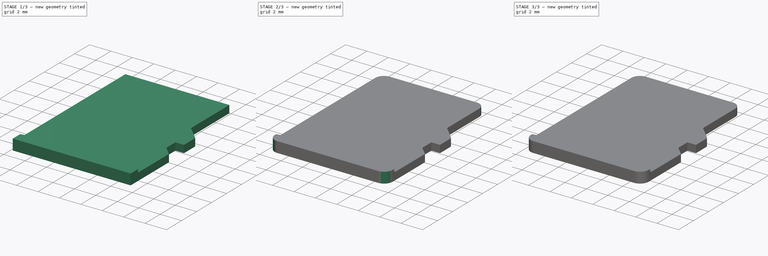
[diagram: build sequence overview — one tinted view per stage of 3, left to right]
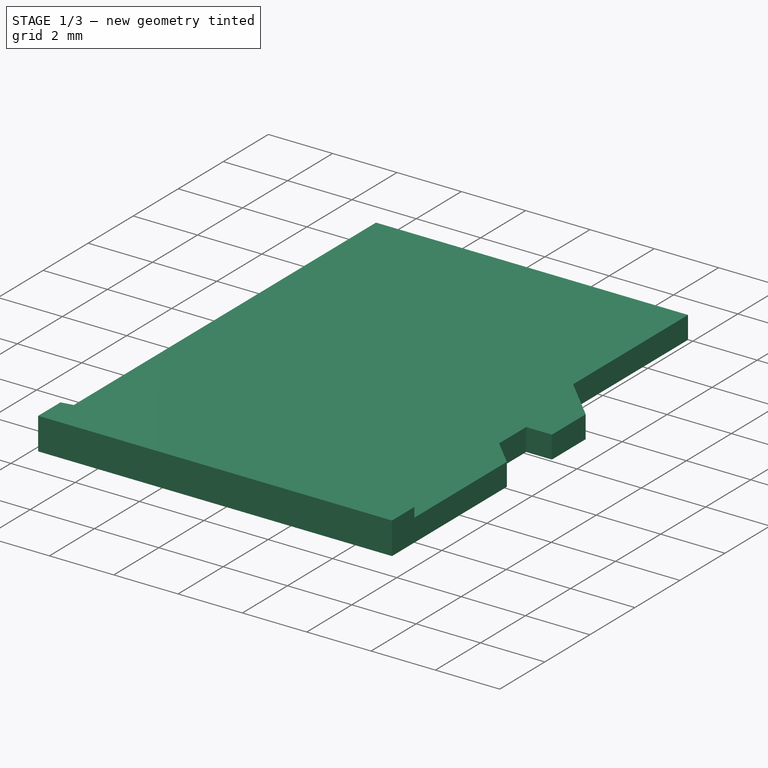
[diagram: stage 1 of 3 — iso view after this stage's code; geometry added in this stage tinted green]
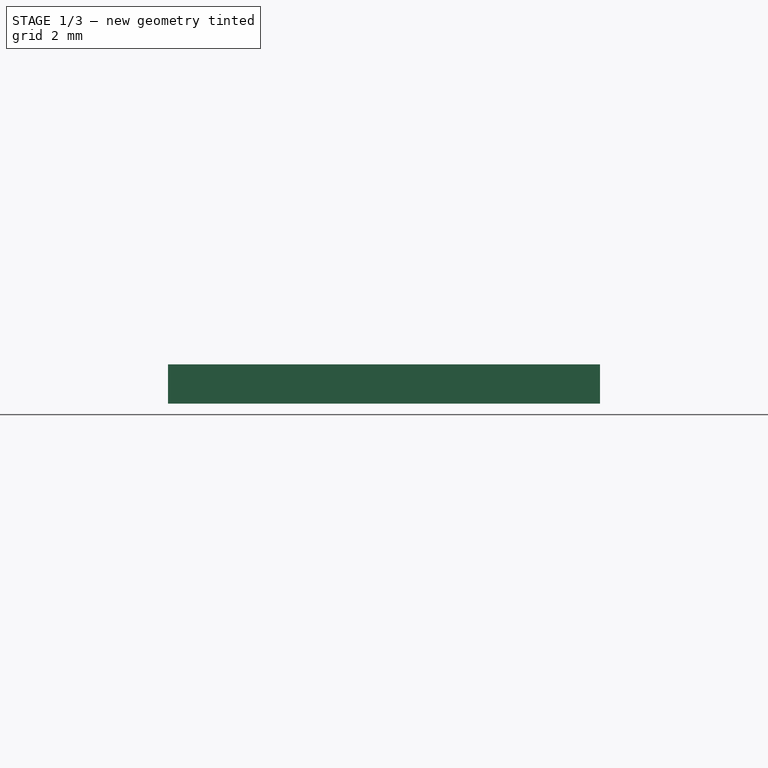
[diagram: stage 1 of 3 — front view after this stage's code; geometry added in this stage tinted green]
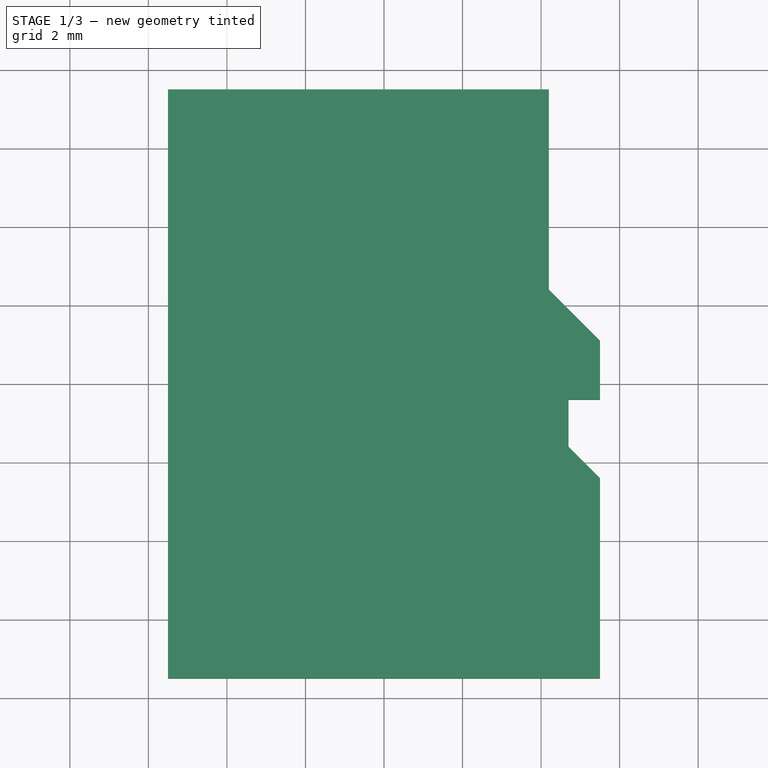
[diagram: stage 1 of 3 — top view after this stage's code; geometry added in this stage tinted green]
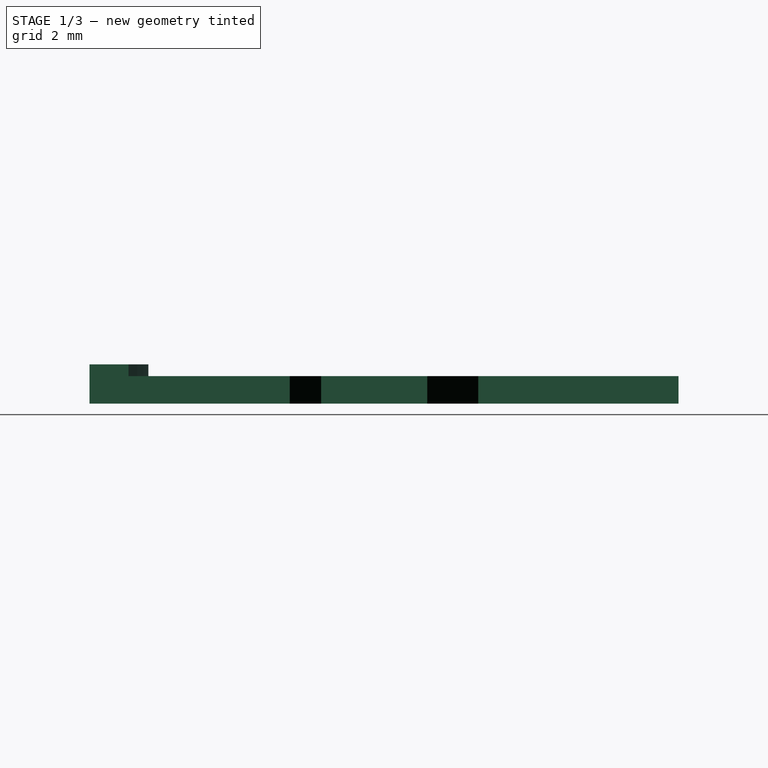
[diagram: stage 1 of 3 — right view after this stage's code; geometry added in this stage tinted green]
FCSTD DOCUMENT  (FreeCAD 0.17R12607 (Git))
Label: MR07C-06200 with SDCard
License: All rights reserved
LicenseURL: http://en.wikipedia.org/wiki/All_rights_reserved
objects: Sketcher::SketchObject×4, PartDesign::Fillet×3, PartDesign::Pad×2, PartDesign::Pocket×2, PartDesign::Body×1
note: 16 computed .brp shape members not serialized (recipe doc carries the construction recipe); baked Part::Feature solids carry a one-line shape summary decoded from their .brp

FEATURE [Sketcher::SketchObject] Sketch
  MapMode = 5
  Support = -> [XY_Plane]
  sketch-geometry (12):
    g0: LineSegment StartX=4.2 StartY=7.5 StartZ=0 EndX=4.2 EndY=2.4 EndZ=0
    g1: LineSegment StartX=4.2 StartY=2.4 StartZ=0 EndX=5.5 EndY=1.1 EndZ=0
    g2: LineSegment StartX=5.5 StartY=1.1 StartZ=0 EndX=5.5 EndY=-0.4 EndZ=0
    g3: LineSegment StartX=5.5 StartY=-0.4 StartZ=0 EndX=4.7 EndY=-0.4 EndZ=0
    g4: LineSegment StartX=4.7 StartY=-0.4 StartZ=0 EndX=4.7 EndY=-1.6 EndZ=0
    g5: LineSegment StartX=4.7 StartY=-1.6 StartZ=0 EndX=5.5 EndY=-2.4 EndZ=0
    g6: LineSegment StartX=4.2 StartY=7.5 StartZ=0 EndX=-5.5 EndY=7.5 EndZ=0
    g7: GeomPoint X=0 Y=-36 Z=0
    g8: ArcOfCircle CenterX=0 CenterY=-36 CenterZ=0 NormalX=0 NormalY=0 NormalZ=1 AngleXU=0 Radius=30 StartAngle=1.38642 EndAngle=1.75517
    g9: GeomPoint X=0 Y=-6 Z=0
    g10: LineSegment StartX=-5.5 StartY=-6.50848 StartZ=0 EndX=-5.5 EndY=7.5 EndZ=0
    g11: LineSegment StartX=5.5 StartY=-6.50848 StartZ=0 EndX=5.5 EndY=-2.4 EndZ=0
  constraints (30):
    c: Vertical(g0)
    c: Coincident(g0,g1)
    c: Coincident(g1,g2)
    c: Vertical(g2)
    c: Coincident(g2,g3)
    c: Coincident(g3,g4)
    c: Vertical(g4)
    c: Coincident(g4,g5)
    c: Horizontal(g6)
    c: DistanceX(g6,g6) = 9.7
    c: Coincident(g0,g6)
    c: Distance(g1,g6) = 6.4
    c: Horizontal(g3)
    c: Angle(g1) = -0.785398
    c: Angle(g5) = -0.785398
    c: Distance(g4,g3) = 1.2
    c: DistanceX(g3,g3) = 0.8
    c: Distance(g2,g6) = 7.9
    c: PointOnObject(g7,g-2)
    c: DistanceY(g-1,g7) = -36
    c: Coincident(g8,g7)
    c: PointOnObject(g9,g-2)
    c: PointOnObject(g9,g8)
    c: DistanceY(g-1,g9) = -6
    c: Coincident(g10,g8)
    c: Coincident(g10,g6)
    c: Vertical(g10)
    c: Coincident(g11,g8)
    c: Coincident(g11,g5)
    c: Vertical(g11)
FEATURE [PartDesign::Pad] Pad
  Length = 0.7
  Length2 = 100
  Profile = -> Sketch
  Type = 0
FEATURE [Sketcher::SketchObject] Sketch001
  ExternalGeometry = -> [Pad]
  MapMode = 5
  Placement = pos=(0,0,0) rot=(1,0,0;3.14159rad)
  Support = -> [Pad]
  sketch-geometry (4):
    g0: ArcOfCircle CenterX=0 CenterY=36 CenterZ=0 NormalX=0 NormalY=0 NormalZ=1 AngleXU=0 Radius=30 StartAngle=4.52801 EndAngle=4.89677
    g1: LineSegment StartX=-5.5 StartY=6.50848 StartZ=0 EndX=-5.5 EndY=7.5 EndZ=0
    g2: LineSegment StartX=-5.5 StartY=7.5 StartZ=0 EndX=5.5 EndY=7.5 EndZ=0
    g3: LineSegment StartX=5.5 StartY=7.5 StartZ=0 EndX=5.5 EndY=6.50848 EndZ=0
  constraints (11):
    c: Coincident(g0,g-3)
    c: Coincident(g0,g-3)
    c: Coincident(g0,g-3)
    c: Coincident(g1,g0)
    c: Vertical(g1)
    c: Coincident(g2,g1)
    c: Horizontal(g2)
    c: Coincident(g3,g2)
    c: Coincident(g3,g0)
    c: Vertical(g3)
    c: DistanceY(g-1,g2) = 7.5
FEATURE [PartDesign::Pad] Pad001
  BaseFeature = -> Pad
  Length = 1
  Length2 = 100
  Profile = -> Sketch001
  Reversed = true
  Type = 0
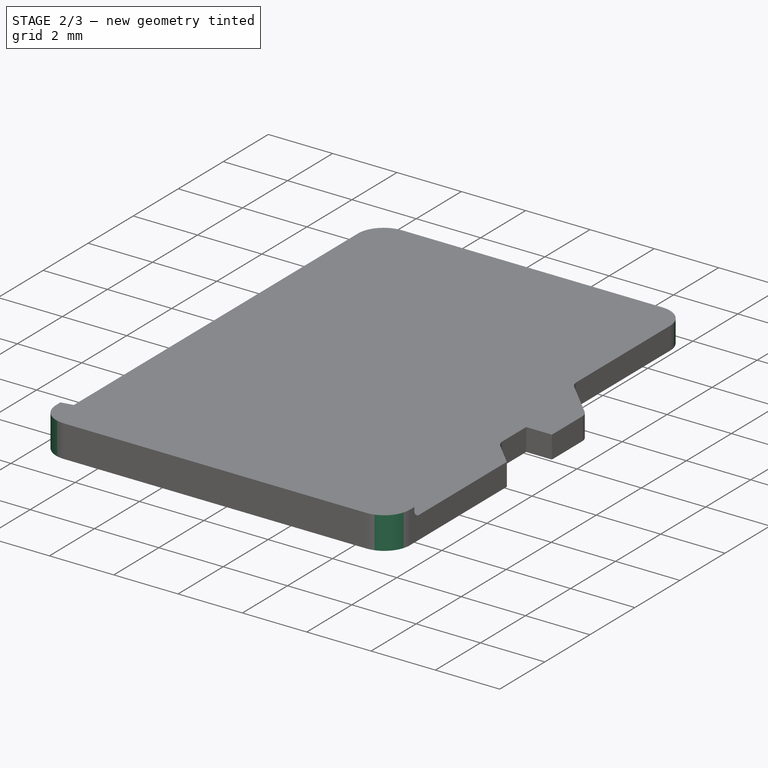
[diagram: stage 2 of 3 — iso view after this stage's code; geometry added in this stage tinted green]
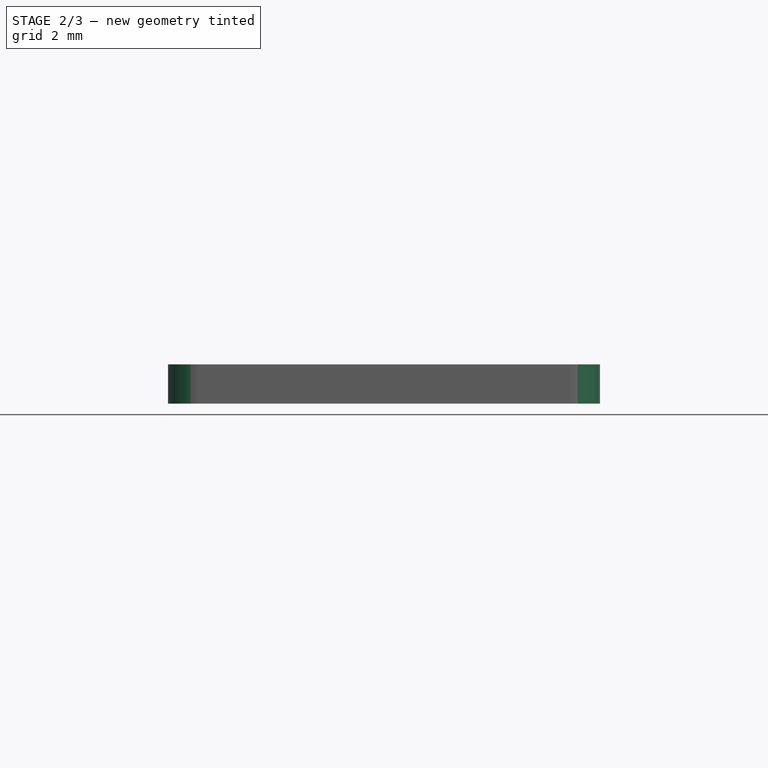
[diagram: stage 2 of 3 — front view after this stage's code; geometry added in this stage tinted green]
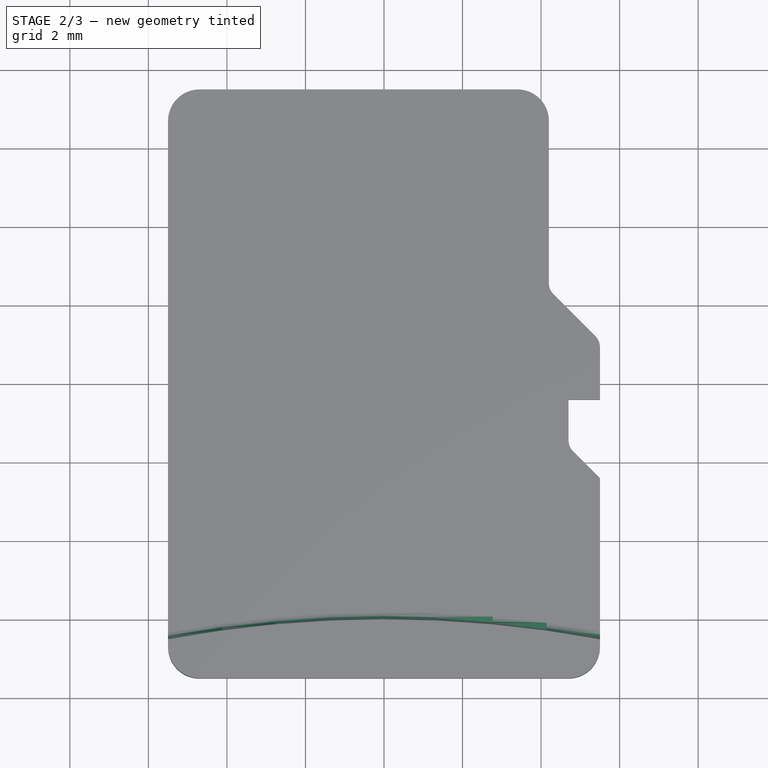
[diagram: stage 2 of 3 — top view after this stage's code; geometry added in this stage tinted green]
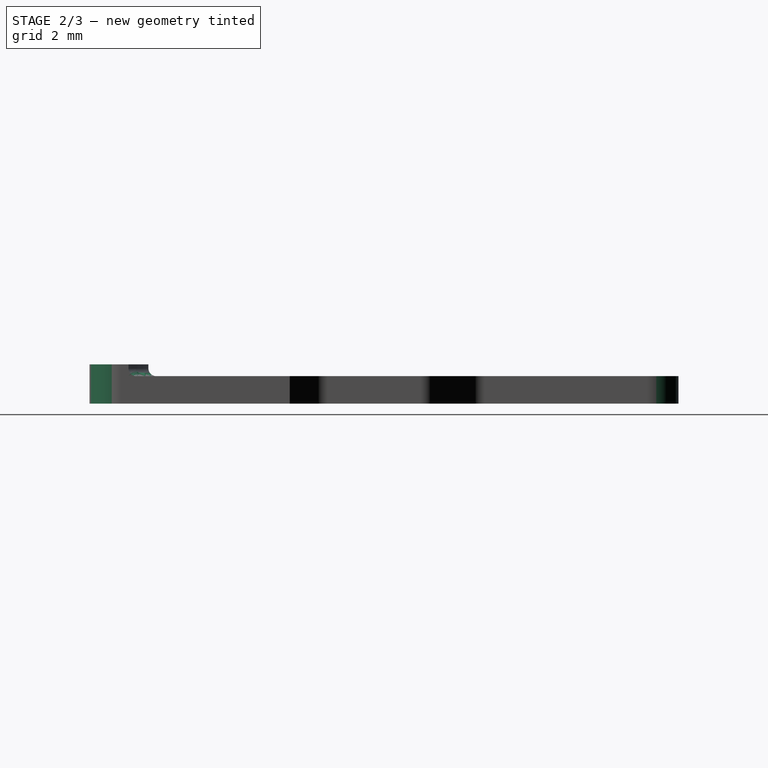
[diagram: stage 2 of 3 — right view after this stage's code; geometry added in this stage tinted green]
FEATURE [PartDesign::Fillet] Fillet
  Base = -> Pad001 [Edge18,Edge35]
  BaseFeature = -> Pad001
  Radius = 0.2
FEATURE [PartDesign::Fillet] Fillet001
  Base = -> Fillet [Edge44,Edge18,Edge22,Edge3]
  BaseFeature = -> Fillet
  Radius = 0.8
FEATURE [PartDesign::Fillet] Fillet002
  Base = -> Fillet001 [Edge42,Edge44,Edge41]
  BaseFeature = -> Fillet001
  Radius = 0.4
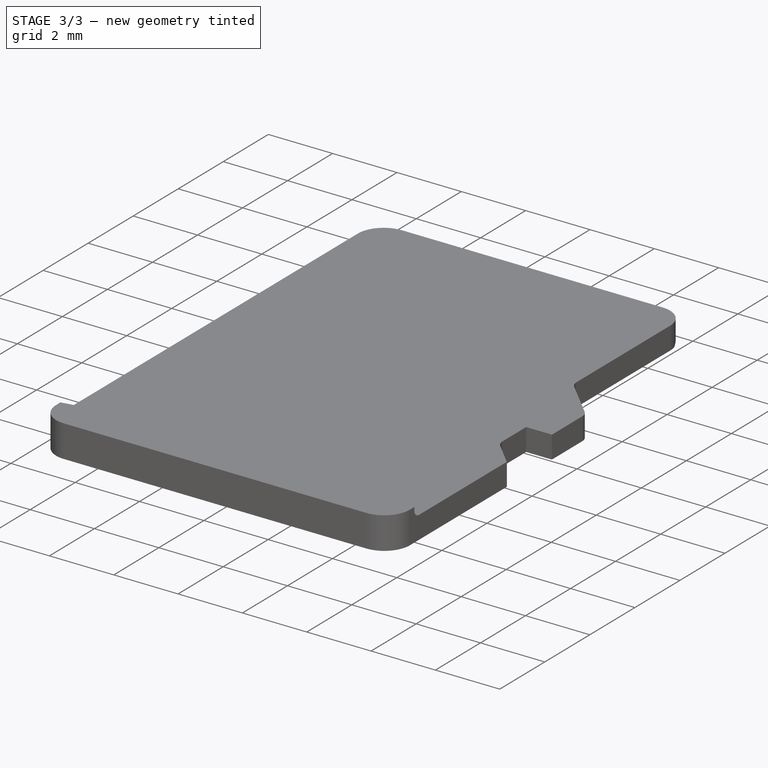
[diagram: stage 3 of 3 — iso view after this stage's code; geometry added in this stage tinted green]
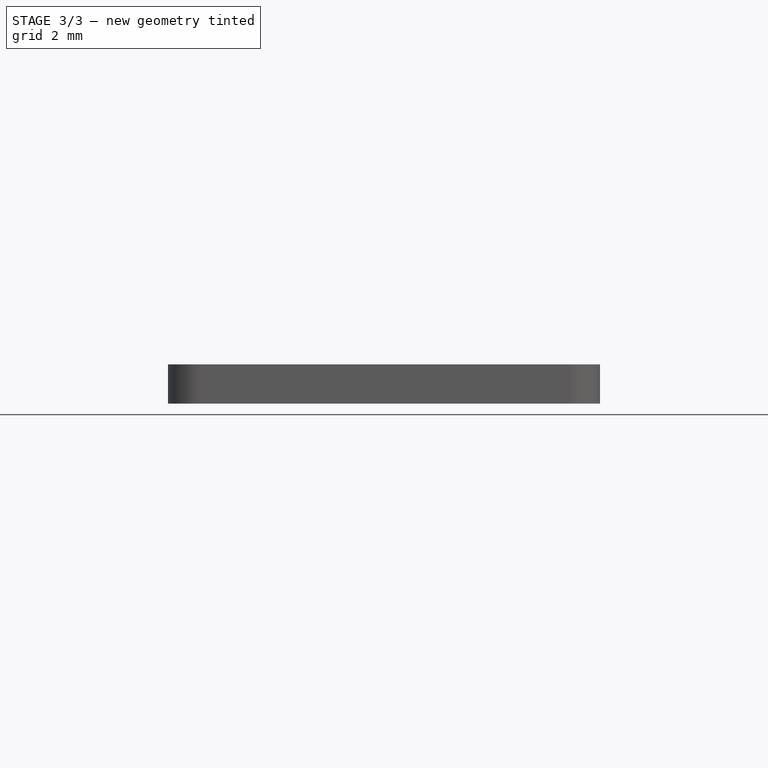
[diagram: stage 3 of 3 — front view after this stage's code; geometry added in this stage tinted green]
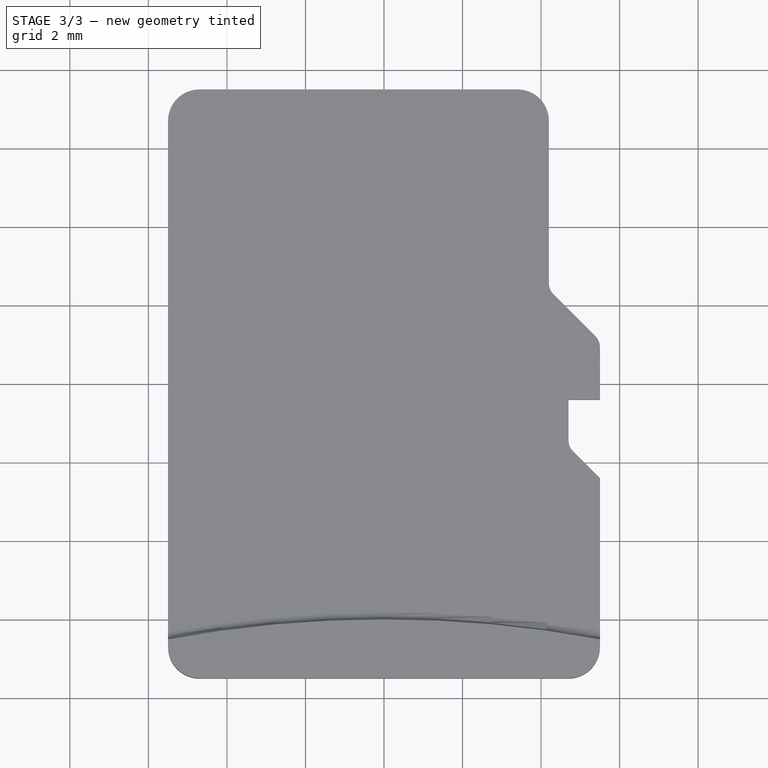
[diagram: stage 3 of 3 — top view after this stage's code; geometry added in this stage tinted green]
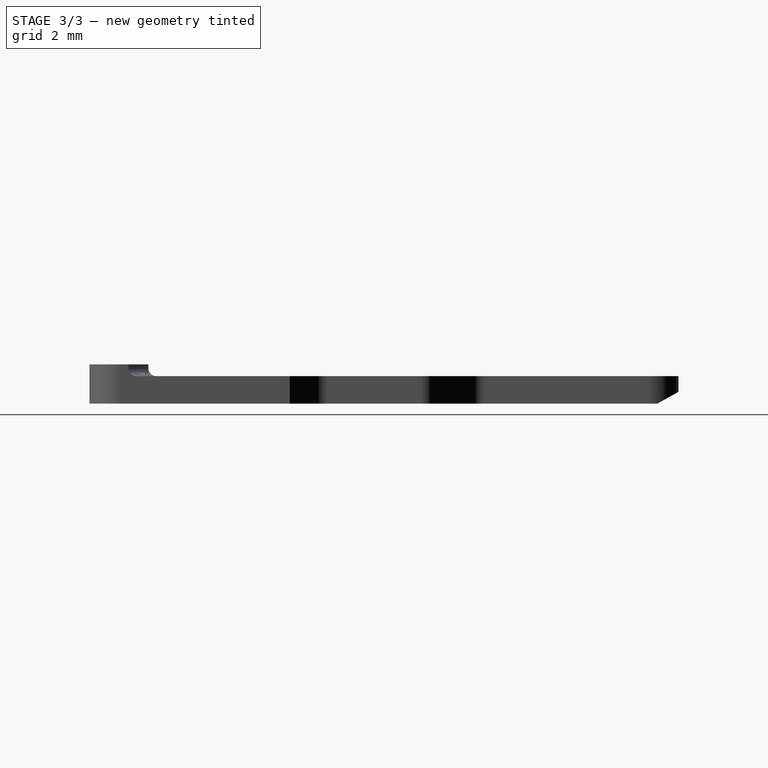
[diagram: stage 3 of 3 — right view after this stage's code; geometry added in this stage tinted green]
FEATURE [Sketcher::SketchObject] Sketch002
  ExternalGeometry = -> [Fillet002]
  MapMode = 5
  Placement = pos=(-5.5,0,0) rot=(0.57735,-0.57735,-0.57735;2.0944rad)
  Support = -> [Fillet002]
  sketch-geometry (3):
    g0: LineSegment StartX=-7.5 StartY=0 StartZ=0 EndX=-6.96 EndY=0 EndZ=0
    g1: LineSegment StartX=-6.96 StartY=0 StartZ=0 EndX=-7.5 EndY=0.3 EndZ=0
    g2: LineSegment StartX=-7.5 StartY=0.3 StartZ=0 EndX=-7.5 EndY=0 EndZ=0
  constraints (8):
    c: Coincident(g-3,g0)
    c: PointOnObject(g0,g-1)
    c: Coincident(g0,g1)
    c: PointOnObject(g1,g-3)
    c: Coincident(g1,g2)
    c: Coincident(g2,g0)
    c: DistanceX(g0,g0) = 0.54
    c: DistanceY(g2,g2) = 0.3
FEATURE [PartDesign::Pocket] Pocket
  BaseFeature = -> Fillet002
  Length = 11
  Profile = -> Sketch002
  Type = 0
FEATURE [Sketcher::SketchObject] Sketch003
  MapMode = 5
  Placement = pos=(0,0,0) rot=(1,0,0;3.14159rad)
  Support = -> [Pad001]
  sketch-geometry (4):
    g0: LineSegment StartX=3.48293 StartY=-5.55274 StartZ=0 EndX=2.63293 EndY=-5.55274 EndZ=0
    g1: LineSegment StartX=2.63293 StartY=-5.55274 StartZ=0 EndX=2.63293 EndY=-2.65274 EndZ=0
    g2: LineSegment StartX=2.63293 StartY=-2.65274 StartZ=0 EndX=3.48293 EndY=-2.65274 EndZ=0
    g3: LineSegment StartX=3.48293 StartY=-2.65274 StartZ=0 EndX=3.48293 EndY=-5.55274 EndZ=0
  constraints (12):
    c: Coincident(g0,g1)
    c: Coincident(g1,g2)
    c: Coincident(g2,g3)
    c: Coincident(g3,g0)
    c: Horizontal(g0)
    c: Horizontal(g2)
    c: Vertical(g1)
    c: Vertical(g3)
    c: DistanceX(g0,g0) = 0.85
    c: DistanceY(g3,g3) = 2.9
    c: DistanceX(g0) = 3.48293
    c: DistanceY(g0) = -5.55274
FEATURE [PartDesign::Pocket] Pocket001
  BaseFeature = -> Pocket
  Length = 0.2
  Profile = -> Sketch003
  Type = 0
FEATURE [PartDesign::Body] Body
  Group = -> [Sketch,Pad,Sketch001,Pad001,Fillet,Fillet001,Fillet002,Sketch002,Pocket,Sketch003,Pocket001]
  Origin = -> Origin
  Tip = -> Pocket001
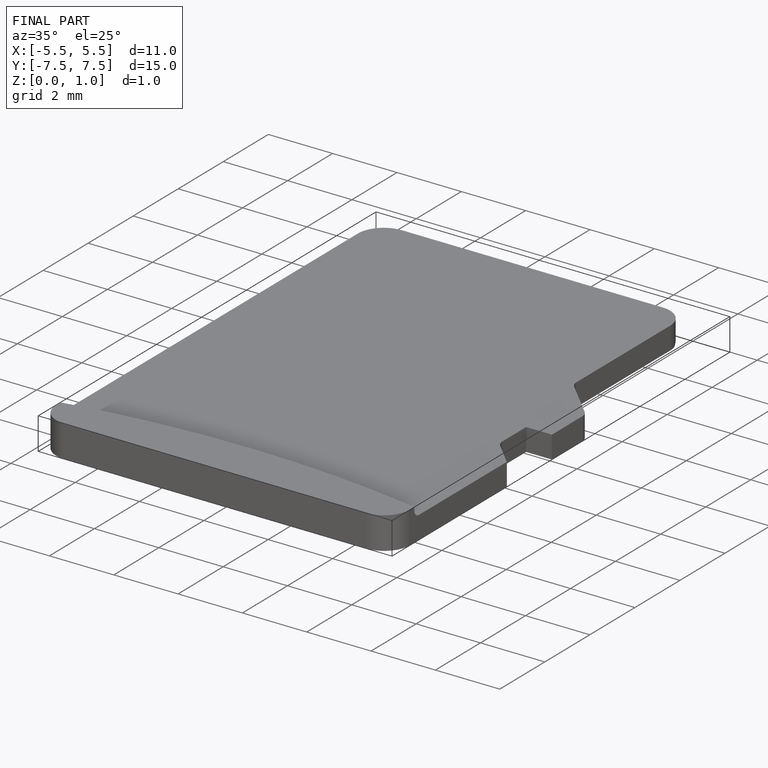
[diagram: finished part — iso view with bounding-box wireframe]
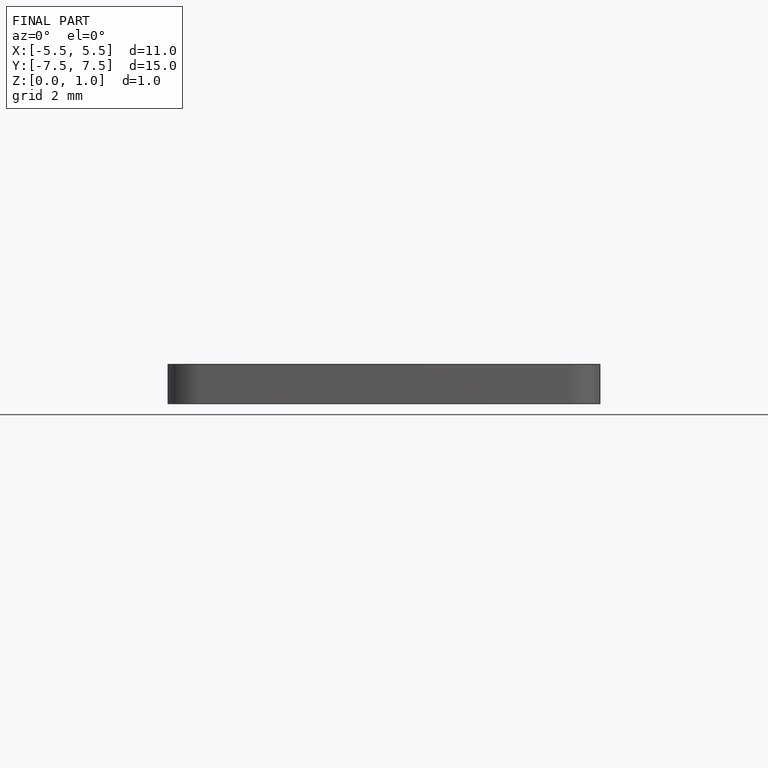
[diagram: finished part — front view with bounding-box wireframe]
